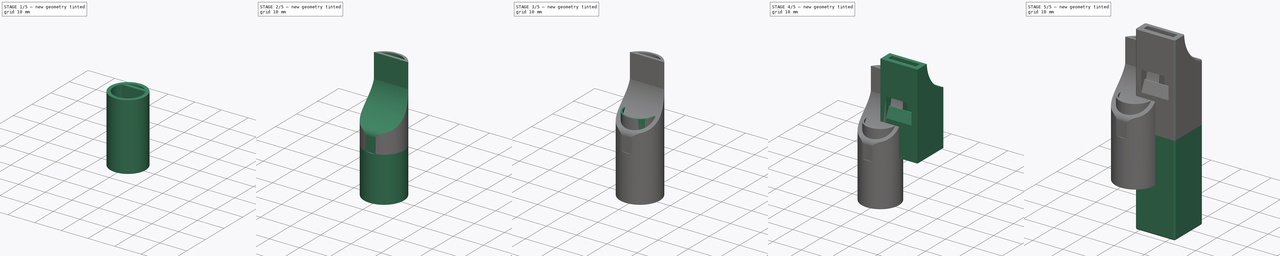
[diagram: build sequence overview — one tinted view per stage of 5, left to right]
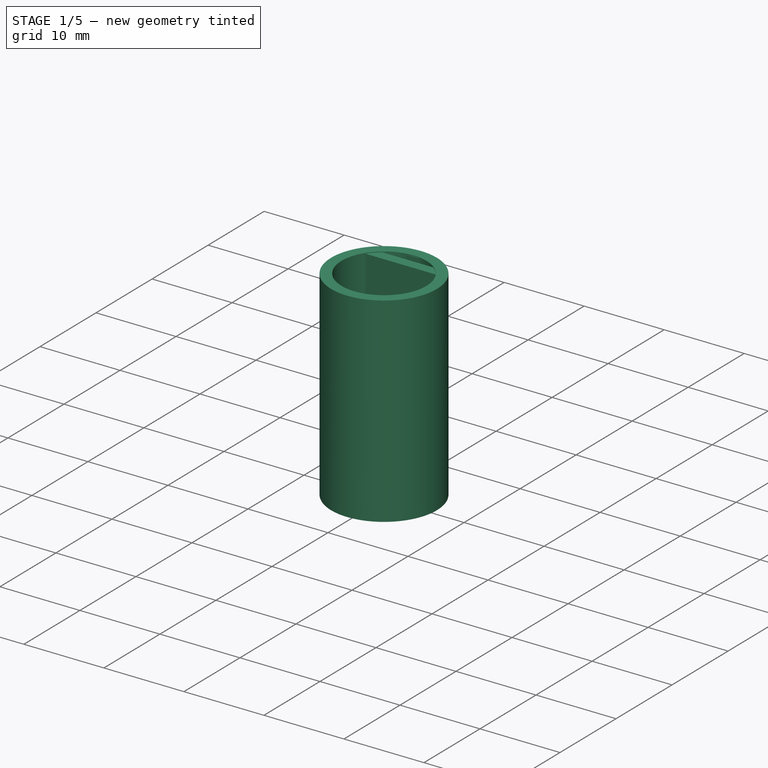
[diagram: stage 1 of 5 — iso view after this stage's code; geometry added in this stage tinted green]
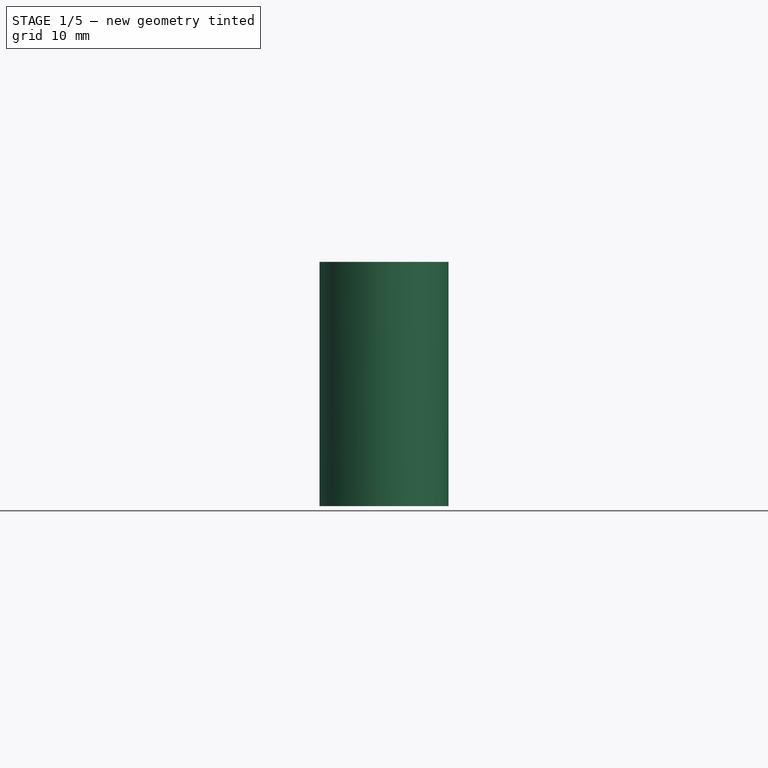
[diagram: stage 1 of 5 — front view after this stage's code; geometry added in this stage tinted green]
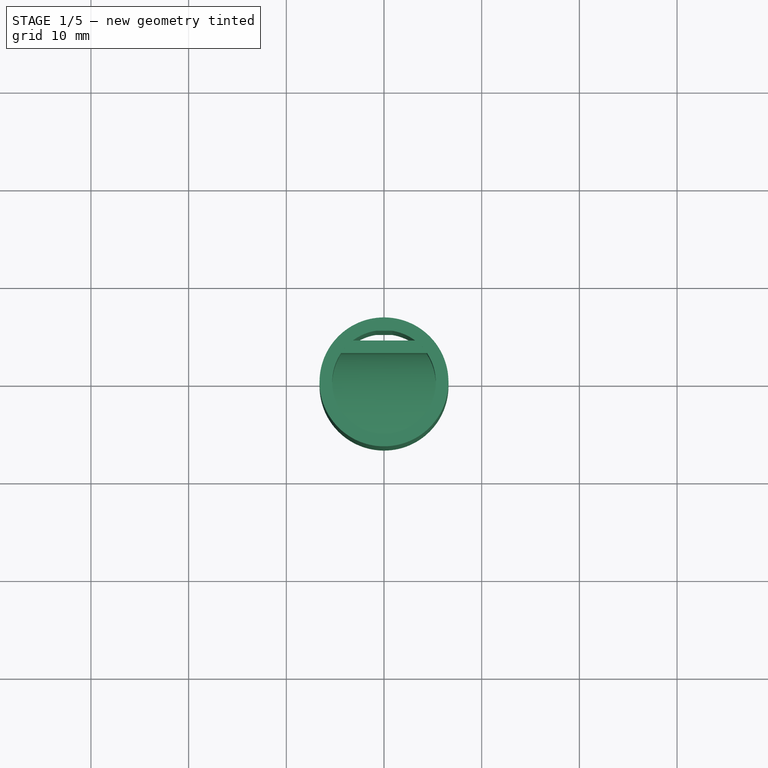
[diagram: stage 1 of 5 — top view after this stage's code; geometry added in this stage tinted green]
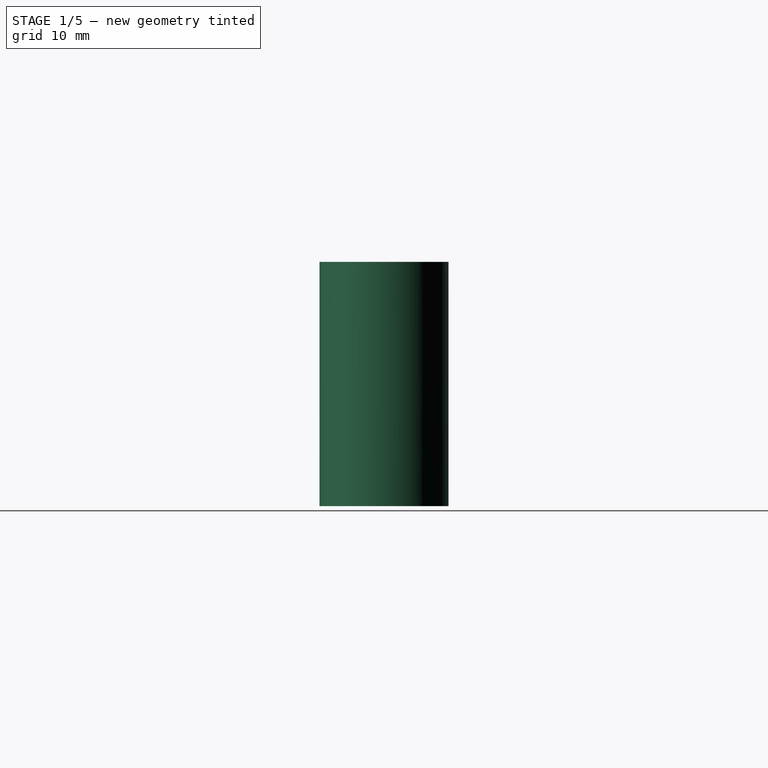
[diagram: stage 1 of 5 — right view after this stage's code; geometry added in this stage tinted green]
FCSTD DOCUMENT  (FreeCAD 1.0R39109 (Git))
Label: Silbato
License: All rights reserved
LicenseURL: http://en.wikipedia.org/wiki/All_rights_reserved
objects: Sketcher::SketchObject×16, PartDesign::Pad×8, PartDesign::Pocket×7, PartDesign::Body×3, PartDesign::Fillet×1, PartDesign::Revolution×1
note: 86 computed .brp shape members not serialized (recipe doc carries the construction recipe); baked Part::Feature solids carry a one-line shape summary decoded from their .brp

FEATURE [PartDesign::Body] Body
  AllowCompound = false
  Group = -> [Sketch,Pad,Sketch001,Sketch002,Pocket,Pad001,Sketch003,Pocket001,Sketch004,Pad002,Sketch005,Pad003,Fillet]
  Origin = -> Origin
  Tip = -> Fillet
FEATURE [Sketcher::SketchObject] Sketch006
  ArcFitTolerance = 1e-06
  AttachmentSupport = -> [XY_Plane001]
  FullyConstrained = true
  MakeInternals = false
  MapMode = 5
  sketch-geometry (2):
    g0: Circle CenterX=0 CenterY=0 CenterZ=0 NormalX=0 NormalY=0 NormalZ=1 AngleXU=0 Radius=6.6
    g1: Circle CenterX=0 CenterY=0 CenterZ=0 NormalX=0 NormalY=0 NormalZ=1 AngleXU=0 Radius=5.3
  constraints (4):
    c: Diameter(g0) = 13.2
    c: Coincident(g0,g-1)
    c: Diameter(g1) = 10.6
    c: Coincident(g1,g0)
FEATURE [PartDesign::Pad] Pad004
  Direction = (0,0,1)
  Length = 25
  Length2 = 10
  Profile = -> Sketch006
  ReferenceAxis = -> Sketch006 [N_Axis]
  Suppressed = false
  Type = 0
FEATURE [Sketcher::SketchObject] Sketch007
  ArcFitTolerance = 1e-06
  AttachmentOffset = pos=(0,0,-5.5) rot=(0,0,1;0rad)
  AttachmentSupport = -> [YZ_Plane001]
  FullyConstrained = false
  MakeInternals = false
  MapMode = 5
  Placement = pos=(-5.5,0,0) rot=(0.57735,0.57735,0.57735;2.0944rad)
  sketch-geometry (14):
    g0: LineSegment StartX=-6.58449 StartY=4.98626 StartZ=0 EndX=-6.58449 EndY=-0.000363 EndZ=0
    g1: LineSegment StartX=6.50077 StartY=0 StartZ=0 EndX=6.50077 EndY=24.9101 EndZ=0
    g2: LineSegment StartX=6.50077 StartY=24.9101 StartZ=0 EndX=5.2313 EndY=24.9101 EndZ=0
    g3: LineSegment StartX=5.2313 StartY=24.9101 StartZ=0 EndX=5.2313 EndY=0 EndZ=0
    g4: LineSegment StartX=-5.31449 StartY=4.63908 StartZ=0 EndX=-5.31449 EndY=-0.000363 EndZ=0
    g5: ArcOfCircle CenterX=-9.83153 CenterY=19.0905 CenterZ=0 NormalX=0 NormalY=0 NormalZ=1 AngleXU=0 Radius=12.9751 StartAngle=5.07558 EndAngle=6.11535
    g6: LineSegment StartX=4.23129 StartY=24.9101 StartZ=0 EndX=4.23129 EndY=16.923 EndZ=0
    g7: ArcOfCircle CenterX=-9.7085 CenterY=19.0572 CenterZ=0 NormalX=0 NormalY=0 NormalZ=1 AngleXU=0 Radius=14.1022 StartAngle=5.09797 EndAngle=6.13126
    g8: ArcOfCircle CenterX=-4.47116 CenterY=4.98626 CenterZ=0 NormalX=0 NormalY=0 NormalZ=1 AngleXU=0 Radius=2.11333 StartAngle=1.93399 EndAngle=3.14159
    g9: ArcOfCircle CenterX=-3.85615 CenterY=4.63908 CenterZ=0 NormalX=0 NormalY=0 NormalZ=1 AngleXU=0 Radius=1.45834 StartAngle=1.95638 EndAngle=3.14159
    g10: LineSegment StartX=-5.31449 StartY=-0.000363 StartZ=0 EndX=-6.58449 EndY=-0.000363 EndZ=0
    g11: LineSegment StartX=6.50077 StartY=0 StartZ=0 EndX=5.2313 EndY=0 EndZ=0
    g12: LineSegment StartX=4.23129 StartY=24.9101 StartZ=0 EndX=2.96129 EndY=24.9101 EndZ=0
    g13: LineSegment StartX=2.96129 StartY=16.923 StartZ=0 EndX=2.96129 EndY=24.9101 EndZ=0
  constraints (23):
    c: Coincident(g1,g2)
    c: Vertical(g0)
    c: Vertical(g1)
    c: Horizontal(g2)
    c: PointOnObject(g1,g-1)
    c: Vertical(g3)
    c: Coincident(g7,g6)
    c: Tangent(g5,g8) = 1.5708
    c: Tangent(g0,g8) = -1.5708
    c: Tangent(g7,g9) = 1.5708
    c: Tangent(g4,g9) = -1.5708
    c: Coincident(g2,g3)
    c: Coincident(g10,g4)
    c: Coincident(g10,g0)
    c: Horizontal(g10)
    c: Coincident(g11,g1)
    c: Coincident(g11,g3)
    c: Horizontal(g11)
    c: Coincident(g12,g6)
    c: Horizontal(g12)
    c: Coincident(g13,g5)
    c: Coincident(g13,g12)
    c: Vertical(g13)
FEATURE [PartDesign::Pad] Pad005
  BaseFeature = -> Pad004
  Direction = (1,0,0)
  Length = 11
  Length2 = 10
  Profile = -> Sketch007
  ReferenceAxis = -> Sketch007 [N_Axis]
  Suppressed = false
  Type = 0
FEATURE [Sketcher::SketchObject] Sketch008
  ArcFitTolerance = 1e-06
  AttachmentOffset = pos=(0,0,-1) rot=(0,0,1;0rad)
  AttachmentSupport = -> [XY_Plane001]
  FullyConstrained = false
  MakeInternals = false
  MapMode = 5
  Placement = pos=(0,0,-1) rot=(0,0,1;0rad)
  sketch-geometry (5):
    g0: Circle CenterX=0 CenterY=0 CenterZ=0 NormalX=0 NormalY=0 NormalZ=1 AngleXU=0 Radius=6.6
    g1: LineSegment StartX=-19.5629 StartY=17.5739 StartZ=0 EndX=-19.5629 EndY=-19.9078 EndZ=0
    g2: LineSegment StartX=-19.5629 StartY=-19.9078 StartZ=0 EndX=22.5857 EndY=-19.9078 EndZ=0
    g3: LineSegment StartX=22.5857 StartY=-19.9078 StartZ=0 EndX=22.5857 EndY=17.5739 EndZ=0
    g4: LineSegment StartX=22.5857 StartY=17.5739 StartZ=0 EndX=-19.5629 EndY=17.5739 EndZ=0
  constraints (10):
    c: Diameter(g0) = 13.2
    c: Coincident(g0,g-1)
    c: Coincident(g1,g2)
    c: Coincident(g2,g3)
    c: Coincident(g3,g4)
    c: Coincident(g4,g1)
    c: Vertical(g1)
    c: Vertical(g3)
    c: Horizontal(g2)
    c: Horizontal(g4)
FEATURE [PartDesign::Pocket] Pocket002
  BaseFeature = -> Pad005
  Direction = (0,0,-1)
  Length = 26
  Length2 = 5
  Profile = -> Sketch008
  ReferenceAxis = -> Sketch008 [N_Axis]
  Reversed = true
  Suppressed = false
  Type = 0
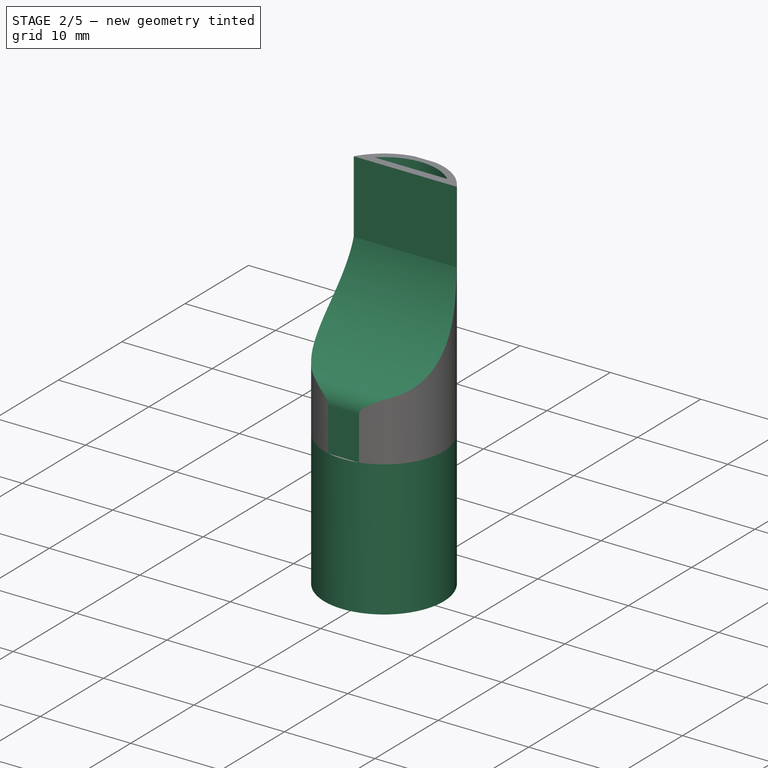
[diagram: stage 2 of 5 — iso view after this stage's code; geometry added in this stage tinted green]
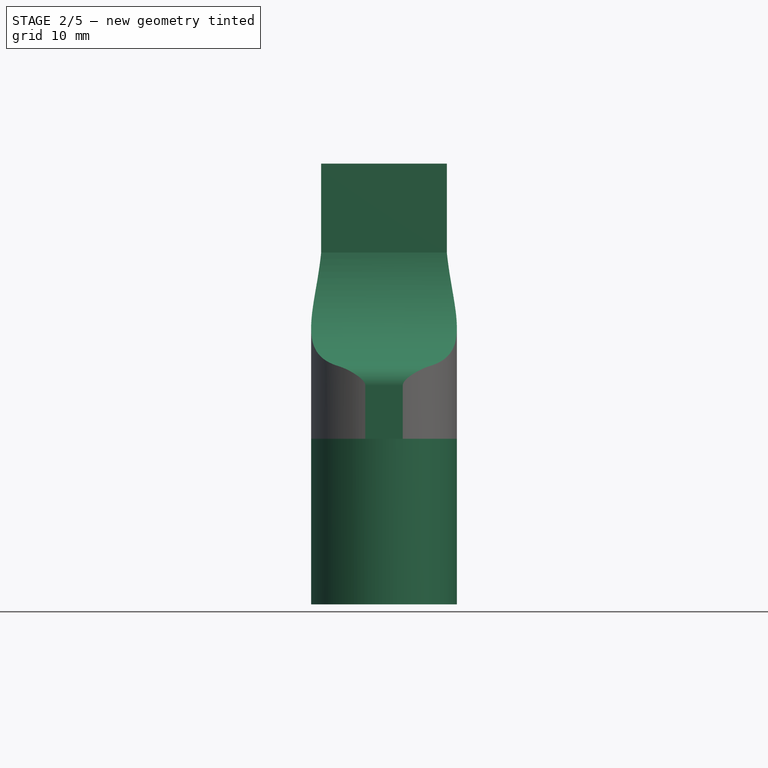
[diagram: stage 2 of 5 — front view after this stage's code; geometry added in this stage tinted green]
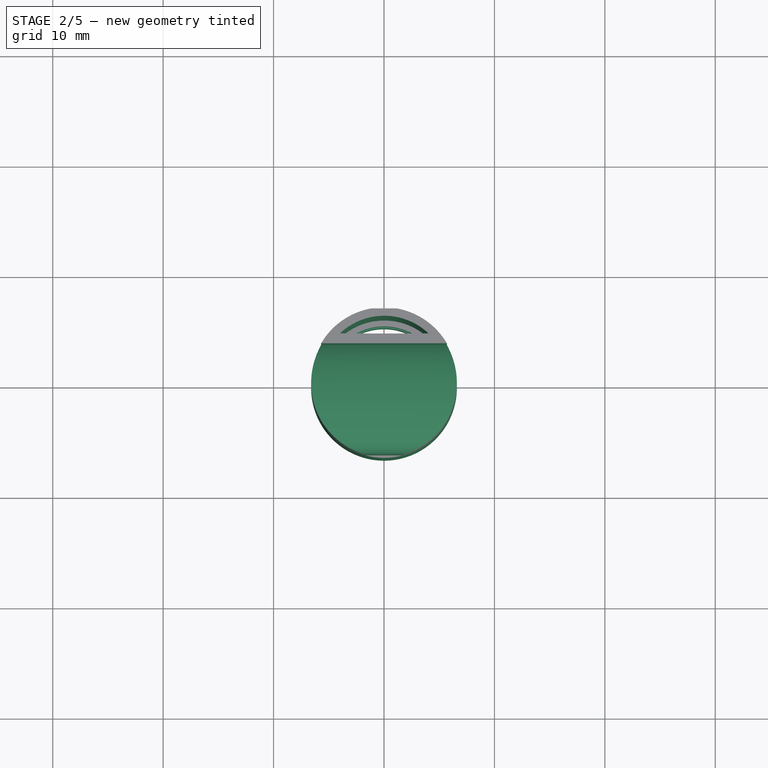
[diagram: stage 2 of 5 — top view after this stage's code; geometry added in this stage tinted green]
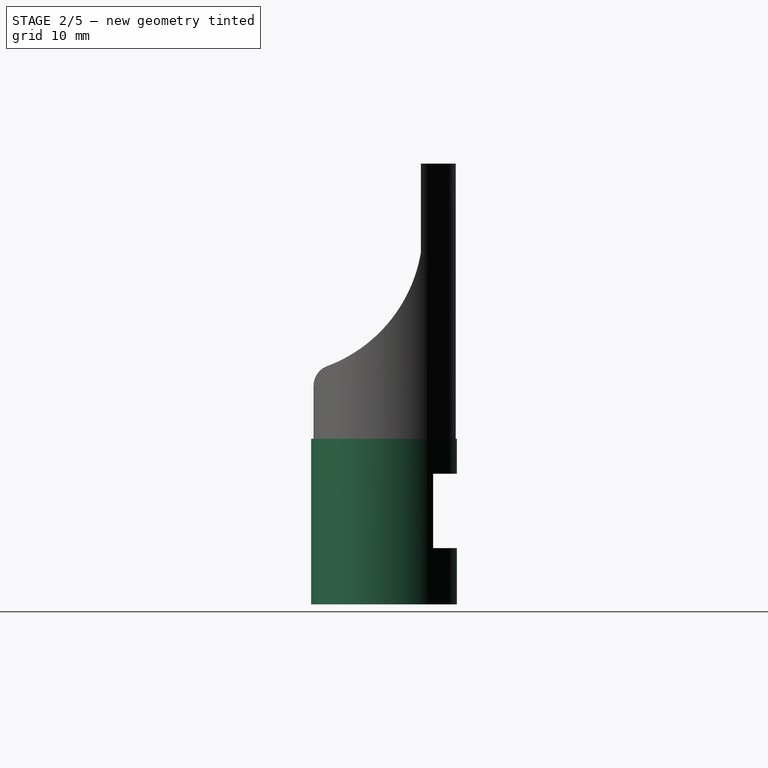
[diagram: stage 2 of 5 — right view after this stage's code; geometry added in this stage tinted green]
FEATURE [Sketcher::SketchObject] Sketch009
  ArcFitTolerance = 1e-06
  AttachmentOffset = pos=(0,0,-8) rot=(0,0,1;0rad)
  AttachmentSupport = -> [YZ_Plane001]
  FullyConstrained = false
  MakeInternals = false
  MapMode = 5
  Placement = pos=(-8,0,0) rot=(0.57735,0.57735,0.57735;2.0944rad)
  sketch-geometry (11):
    g0: LineSegment StartX=-6.3783 StartY=4.79849 StartZ=0 EndX=-6.3783 EndY=0 EndZ=0
    g1: LineSegment StartX=6.50077 StartY=0 StartZ=0 EndX=6.50077 EndY=24.9101 EndZ=0
    g2: ArcOfCircle CenterX=-9.83153 CenterY=19.0905 CenterZ=0 NormalX=0 NormalY=0 NormalZ=1 AngleXU=0 Radius=13.3624 StartAngle=5.0707 EndAngle=6.1154
    g3: ArcOfCircle CenterX=-4.47952 CenterY=4.79849 CenterZ=0 NormalX=0 NormalY=0 NormalZ=1 AngleXU=0 Radius=1.89877 StartAngle=1.92911 EndAngle=3.14159
    g4: LineSegment StartX=3.34325 StartY=16.8589 StartZ=0 EndX=3.34325 EndY=24.9101 EndZ=0
    g5: LineSegment StartX=11.756 StartY=0 StartZ=0 EndX=11.756 EndY=26.7207 EndZ=0
    g6: LineSegment StartX=11.756 StartY=26.7207 StartZ=0 EndX=-13.8336 EndY=26.7207 EndZ=0
    g7: LineSegment StartX=-13.8336 StartY=26.7207 StartZ=0 EndX=-13.8336 EndY=0 EndZ=0
    g8: LineSegment StartX=-6.3783 StartY=0 StartZ=0 EndX=-13.8336 EndY=0 EndZ=0
    g9: LineSegment StartX=6.50077 StartY=24.9101 StartZ=0 EndX=3.34325 EndY=24.9101 EndZ=0
    g10: LineSegment StartX=11.756 StartY=0 StartZ=0 EndX=6.50077 EndY=0 EndZ=0
  constraints (22):
    c: Vertical(g0)
    c: Vertical(g1)
    c: PointOnObject(g1,g-1)
    c: Tangent(g2,g3) = 1.5708
    c: Tangent(g0,g3) = -1.5708
    c: Coincident(g4,g2)
    c: Vertical(g4)
    c: Coincident(g5,g6)
    c: Coincident(g6,g7)
    c: Horizontal(g6)
    c: Vertical(g5)
    c: Vertical(g7)
    c: PointOnObject(g7,g-1)
    c: Coincident(g8,g0)
    c: Coincident(g8,g7)
    c: Horizontal(g8)
    c: Coincident(g9,g1)
    c: Coincident(g9,g4)
    c: Horizontal(g9)
    c: Coincident(g10,g5)
    c: Coincident(g10,g1)
    c: Horizontal(g10)
FEATURE [PartDesign::Pocket] Pocket003
  BaseFeature = -> Pocket002
  Direction = (-1,0,0)
  Length = 9
  Length2 = 5
  Profile = -> Sketch009
  ReferenceAxis = -> Sketch009 [N_Axis]
  Reversed = true
  Suppressed = false
  Type = 1
FEATURE [PartDesign::Body] Body002
  AllowCompound = false
  Group = -> [Sketch010,Pad006]
  Origin = -> Origin002
  Tip = -> Pad006
FEATURE [Sketcher::SketchObject] Sketch011
  ArcFitTolerance = 1e-06
  AttachmentSupport = -> [Pocket003]
  ExternalGeometry = -> [Pocket003]
  FullyConstrained = false
  MakeInternals = false
  MapMode = 5
  Placement = pos=(0,0,24.9101) rot=(0,0,1;0rad)
  sketch-geometry (2):
    g0: ArcOfCircle CenterX=0.0185375 CenterY=-0.002136 CenterZ=0 NormalX=0 NormalY=0 NormalZ=1 AngleXU=0 Radius=5.83666 StartAngle=0.812321 EndAngle=2.32927
    g1: LineSegment StartX=-3.99601 StartY=4.23461 StartZ=0 EndX=4.03308 EndY=4.23461 EndZ=0
  constraints (3):
    c: Coincident(g1,g0)
    c: Coincident(g1,g0)
    c: Horizontal(g1)
FEATURE [PartDesign::Pocket] Pocket004
  BaseFeature = -> Pocket003
  Direction = (0,0,-1)
  Length = 5
  Length2 = 5
  Profile = -> Sketch011
  ReferenceAxis = -> Sketch011 [N_Axis]
  Suppressed = false
  Type = 1
FEATURE [Sketcher::SketchObject] Sketch012
  ArcFitTolerance = 1e-06
  AttachmentSupport = -> [XY_Plane001]
  FullyConstrained = true
  MakeInternals = false
  MapMode = 5
  sketch-geometry (2):
    g0: Circle CenterX=0 CenterY=0 CenterZ=0 NormalX=0 NormalY=0 NormalZ=1 AngleXU=0 Radius=6.6
    g1: Circle CenterX=0 CenterY=0 CenterZ=0 NormalX=0 NormalY=0 NormalZ=1 AngleXU=0 Radius=5.3
  constraints (4):
    c: Diameter(g0) = 13.2
    c: Coincident(g0,g-1)
    c: Diameter(g1) = 10.6
    c: Coincident(g1,g0)
FEATURE [PartDesign::Pad] Pad007
  BaseFeature = -> Pocket004
  Direction = (0,0,1)
  Length = 15
  Length2 = 10
  Profile = -> Sketch012
  ReferenceAxis = -> Sketch012 [N_Axis]
  Reversed = true
  Suppressed = false
  Type = 0
FEATURE [Sketcher::SketchObject] Sketch013
  ArcFitTolerance = 1e-06
  AttachmentOffset = pos=(0,0,-7) rot=(0,0,1;0rad)
  AttachmentSupport = -> [YZ_Plane001]
  FullyConstrained = false
  MakeInternals = false
  MapMode = 5
  Placement = pos=(-7,0,0) rot=(0.57735,0.57735,0.57735;2.0944rad)
  sketch-geometry (4):
    g0: LineSegment StartX=7.72749 StartY=-3.17644 StartZ=0 EndX=4.45519 EndY=-3.17644 EndZ=0
    g1: LineSegment StartX=4.45519 StartY=-3.17644 StartZ=0 EndX=4.45519 EndY=-9.90637 EndZ=0
    g2: LineSegment StartX=4.45519 StartY=-9.90637 StartZ=0 EndX=7.72749 EndY=-9.90637 EndZ=0
    g3: LineSegment StartX=7.72749 StartY=-9.90637 StartZ=0 EndX=7.72749 EndY=-3.17644 EndZ=0
  constraints (8):
    c: Coincident(g0,g1)
    c: Coincident(g1,g2)
    c: Coincident(g2,g3)
    c: Coincident(g3,g0)
    c: Horizontal(g0)
    c: Horizontal(g2)
    c: Vertical(g1)
    c: Vertical(g3)
FEATURE [PartDesign::Pocket] Pocket005
  BaseFeature = -> Pad007
  Direction = (-1,0,0)
  Length = 5
  Length2 = 5
  Profile = -> Sketch013
  ReferenceAxis = -> Sketch013 [N_Axis]
  Reversed = true
  Suppressed = false
  Type = 1
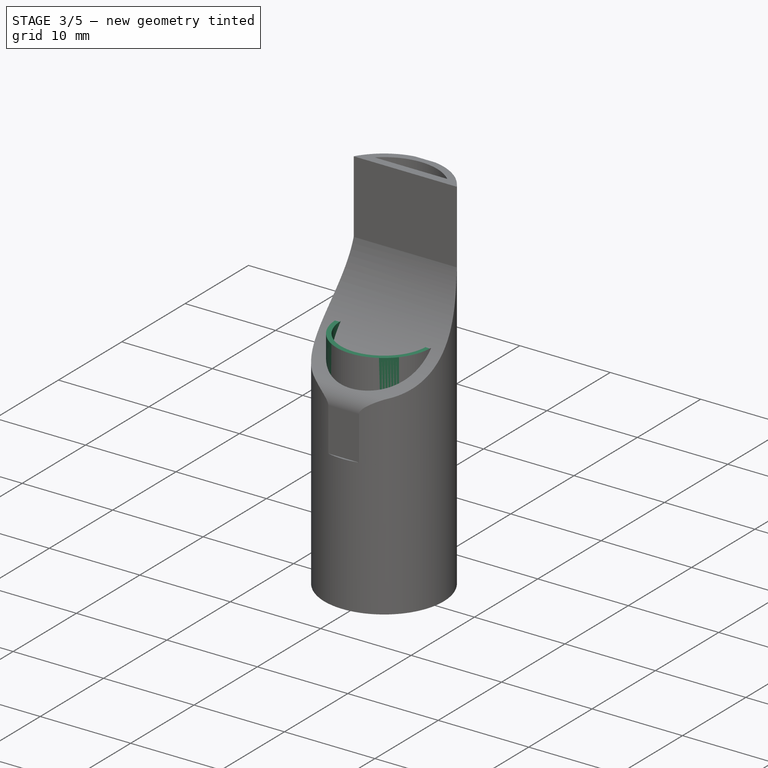
[diagram: stage 3 of 5 — iso view after this stage's code; geometry added in this stage tinted green]
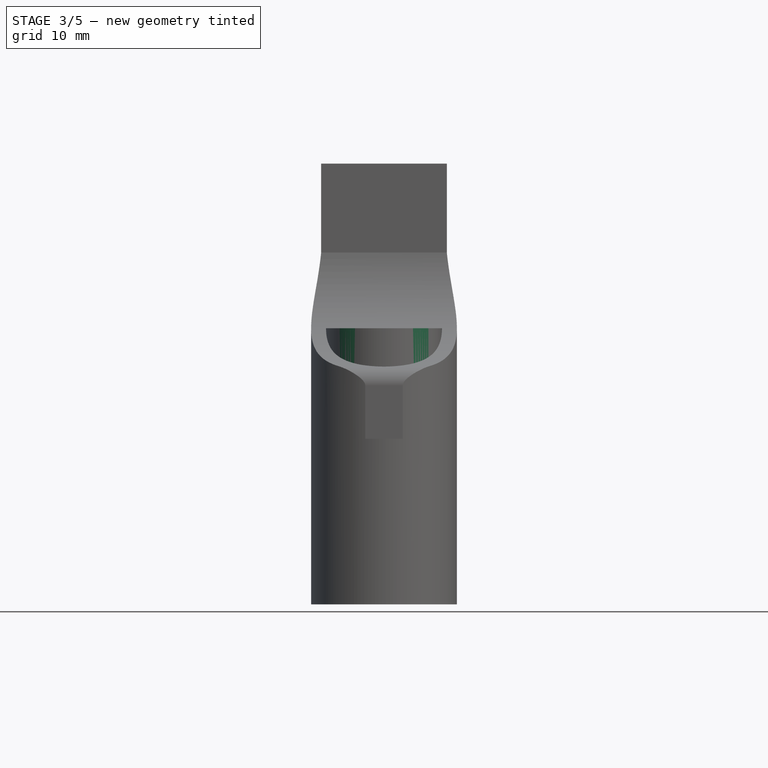
[diagram: stage 3 of 5 — front view after this stage's code; geometry added in this stage tinted green]
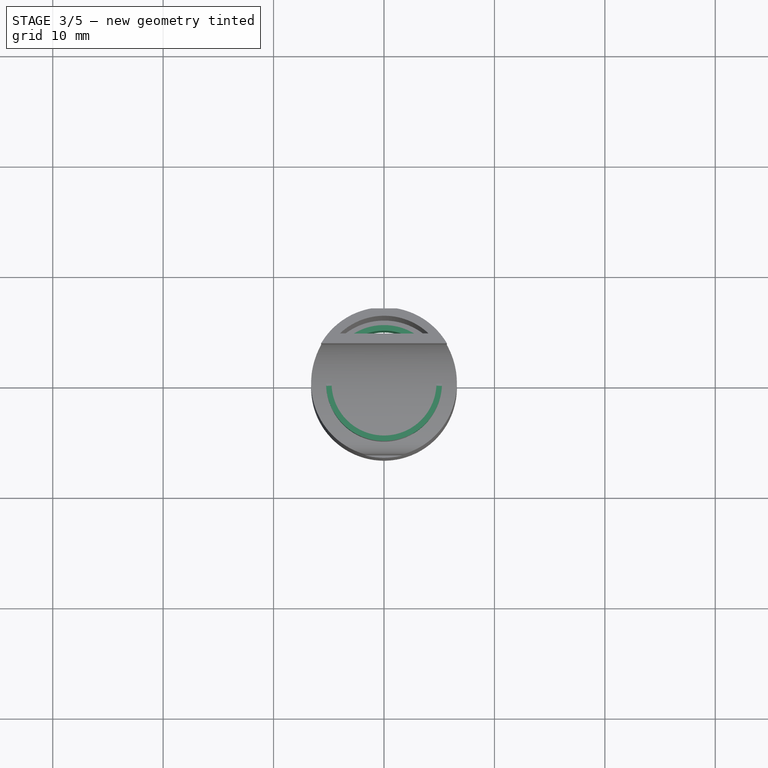
[diagram: stage 3 of 5 — top view after this stage's code; geometry added in this stage tinted green]
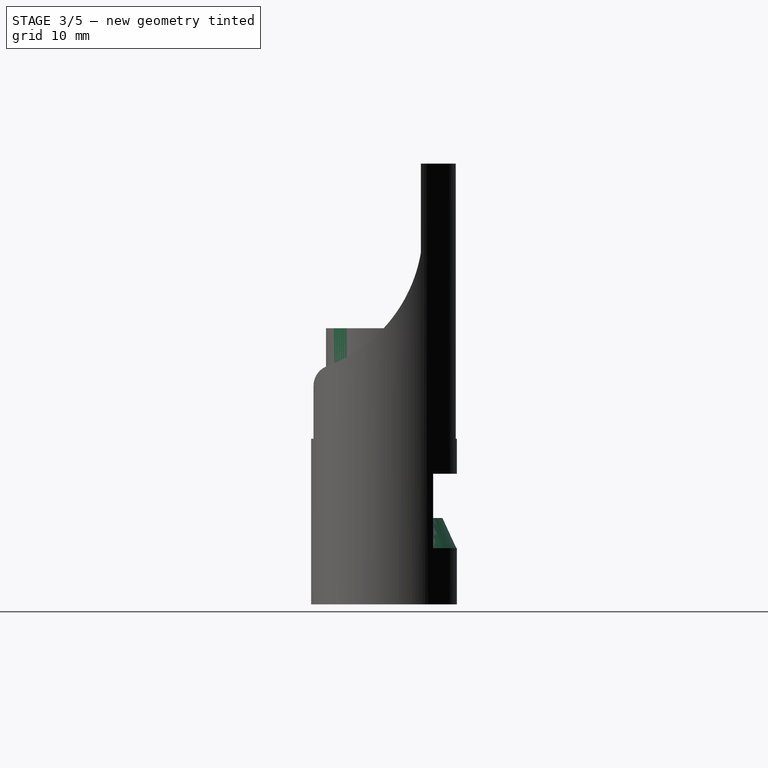
[diagram: stage 3 of 5 — right view after this stage's code; geometry added in this stage tinted green]
FEATURE [Sketcher::SketchObject] Sketch010
  ArcFitTolerance = 1e-06
  AttachmentSupport = -> [XY_Plane002]
  FullyConstrained = false
  MakeInternals = false
  MapMode = 5
  sketch-geometry (2):
    g0: Circle CenterX=0 CenterY=0 CenterZ=0 NormalX=0 NormalY=0 NormalZ=1 AngleXU=0 Radius=5.25162
    g1: Circle CenterX=0 CenterY=0 CenterZ=0 NormalX=0 NormalY=0 NormalZ=1 AngleXU=0 Radius=4.75
  constraints (3):
    c: Coincident(g0,g-1)
    c: Diameter(g1) = 9.5
    c: Coincident(g1,g0)
FEATURE [PartDesign::Pad] Pad006
  Direction = (0,0,1)
  Length = 10
  Length2 = 10
  Profile = -> Sketch010
  ReferenceAxis = -> Sketch010 [N_Axis]
  Suppressed = false
  Type = 0
FEATURE [Sketcher::SketchObject] Sketch014
  ArcFitTolerance = 1e-06
  AttachmentSupport = -> [YZ_Plane001]
  ExternalGeometry = -> [Pocket005]
  FullyConstrained = false
  MakeInternals = false
  MapMode = 5
  Placement = pos=(0,0,0) rot=(0.57735,0.57735,0.57735;2.0944rad)
  sketch-geometry (3):
    g0: LineSegment StartX=5.25972 StartY=-9.90637 StartZ=0 EndX=6.55426 EndY=-9.90637 EndZ=0
    g1: LineSegment StartX=6.55426 StartY=-9.90637 StartZ=0 EndX=4.86409 EndY=-6.23806 EndZ=0
    g2: LineSegment StartX=4.86409 StartY=-6.23806 StartZ=0 EndX=5.25972 EndY=-9.90637 EndZ=0
  constraints (4):
    c: Horizontal(g0)
    c: Coincident(g0,g1)
    c: Coincident(g2,g1)
    c: Coincident(g2,g0)
FEATURE [PartDesign::Revolution] Revolution
  Angle = 100
  Angle2 = 60
  Axis = (0,0,1)
  Base = (0,0,0)
  BaseFeature = -> Pocket005
  Midplane = true
  Profile = -> Sketch014
  ReferenceAxis = -> Sketch014 [V_Axis]
  Reversed = true
  Suppressed = false
  Type = 0
FEATURE [Sketcher::SketchObject] Sketch015
  ArcFitTolerance = 1e-06
  AttachmentOffset = pos=(0,0,-10) rot=(0,0,1;0rad)
  AttachmentSupport = -> [XY_Plane001]
  FullyConstrained = false
  MakeInternals = false
  MapMode = 5
  Placement = pos=(0,0,-10) rot=(0,0,1;0rad)
  sketch-geometry (1):
    g0: Circle CenterX=0 CenterY=0 CenterZ=0 NormalX=0 NormalY=0 NormalZ=1 AngleXU=0 Radius=5.3
  constraints (1):
    c: Diameter(g0) = 10.6
FEATURE [PartDesign::Pocket] Pocket006
  BaseFeature = -> Revolution
  Direction = (0,0,-1)
  Length = 5
  Length2 = 5
  Profile = -> Sketch015
  ReferenceAxis = -> Sketch015 [N_Axis]
  Reversed = true
  Suppressed = false
  Type = 0
FEATURE [PartDesign::Body] Body001
  AllowCompound = false
  Group = -> [Sketch006,Pad004,Sketch007,Pad005,Sketch008,Pocket002,Sketch009,Pocket003,Sketch011,Pocket004,Sketch012,Pad007,Sketch013,Pocket005,Sketch014,Revolution,Sketch015,Pocket006]
  Origin = -> Origin001
  Tip = -> Pocket006
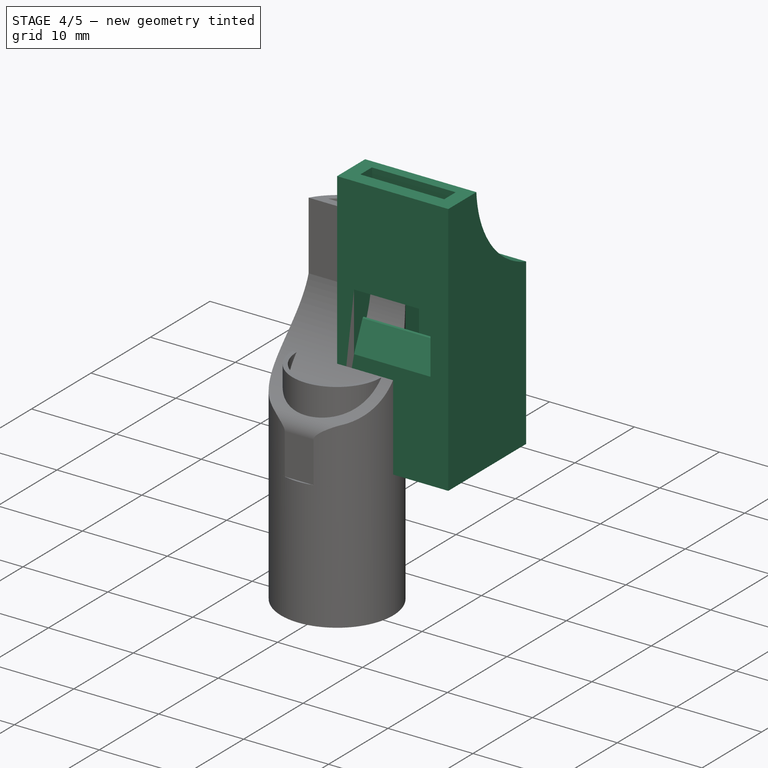
[diagram: stage 4 of 5 — iso view after this stage's code; geometry added in this stage tinted green]
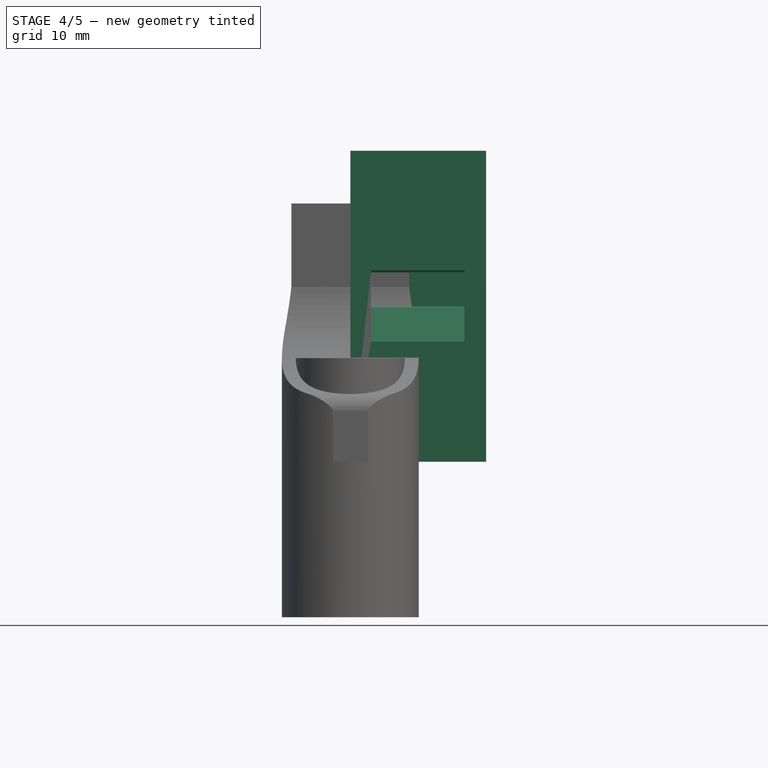
[diagram: stage 4 of 5 — front view after this stage's code; geometry added in this stage tinted green]
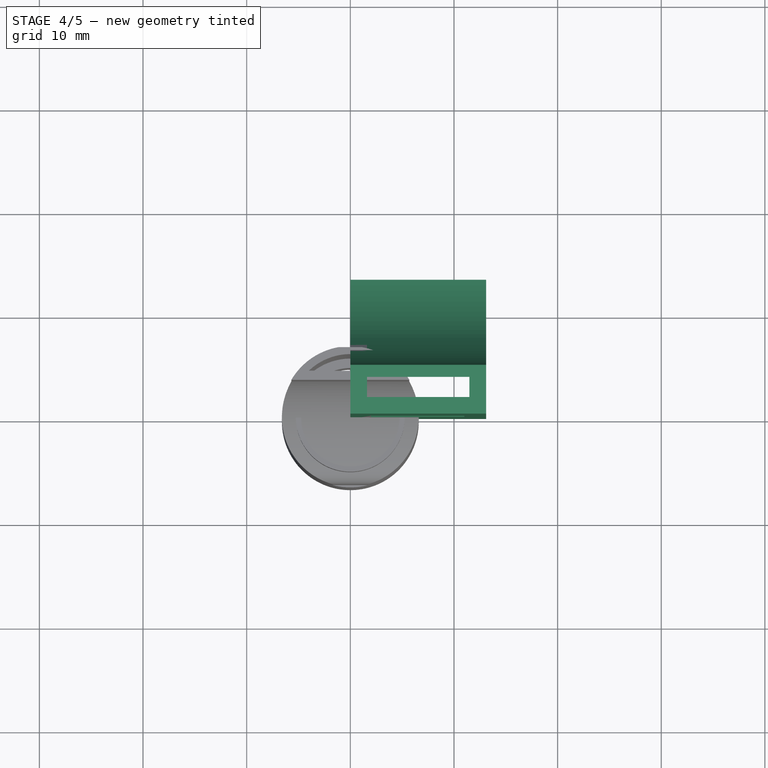
[diagram: stage 4 of 5 — top view after this stage's code; geometry added in this stage tinted green]
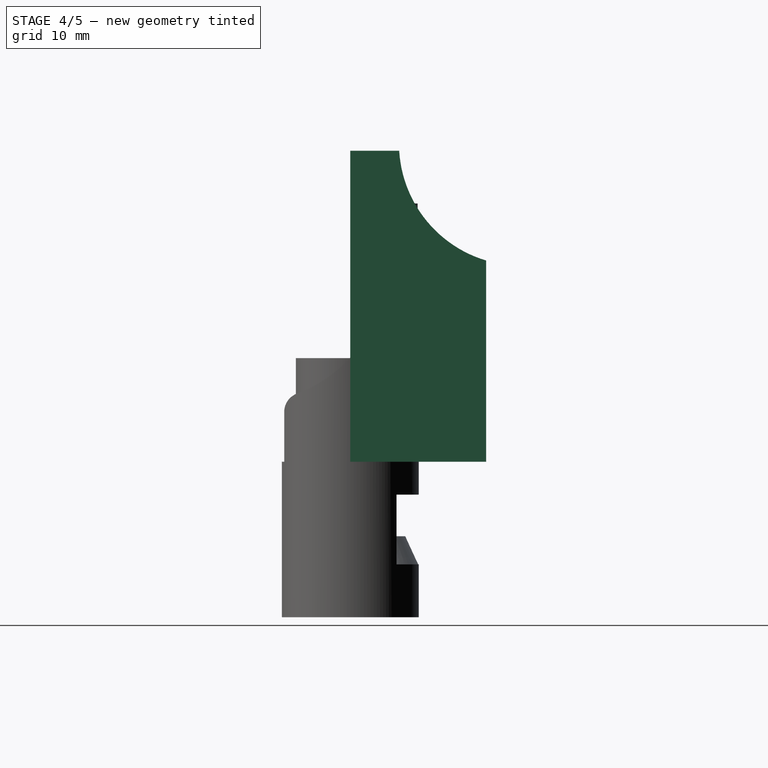
[diagram: stage 4 of 5 — right view after this stage's code; geometry added in this stage tinted green]
FEATURE [Sketcher::SketchObject] Sketch
  ArcFitTolerance = 1e-06
  AttachmentSupport = -> [XY_Plane]
  FullyConstrained = false
  MakeInternals = false
  MapMode = 5
  sketch-geometry (12):
    g0: LineSegment StartX=0 StartY=0 StartZ=0 EndX=13.1 EndY=0 EndZ=0
    g1: LineSegment StartX=13.1 StartY=0 StartZ=0 EndX=13.1 EndY=13.1 EndZ=0
    g2: LineSegment StartX=13.1 StartY=13.1 StartZ=0 EndX=0 EndY=13.1 EndZ=0
    g3: LineSegment StartX=0 StartY=13.1 StartZ=0 EndX=0 EndY=0 EndZ=0
    g4: LineSegment StartX=1.60951 StartY=1.60951 StartZ=0 EndX=11.4905 EndY=1.60951 EndZ=0
    g5: LineSegment StartX=11.4905 StartY=1.60951 StartZ=0 EndX=11.4905 EndY=11.4905 EndZ=0
    g6: LineSegment StartX=11.4905 StartY=11.4905 StartZ=0 EndX=1.60951 EndY=11.4905 EndZ=0
    g7: LineSegment StartX=1.60951 StartY=11.4905 StartZ=0 EndX=1.60951 EndY=1.60951 EndZ=0
    g8: LineSegment [constr] StartX=0 StartY=0 StartZ=0 EndX=1.60951 EndY=1.60951 EndZ=0
    g9: LineSegment [constr] StartX=13.1 StartY=0 StartZ=0 EndX=11.4905 EndY=1.60951 EndZ=0
    g10: LineSegment [constr] StartX=13.1 StartY=13.1 StartZ=0 EndX=11.4905 EndY=11.4905 EndZ=0
    g11: LineSegment [constr] StartX=0 StartY=13.1 StartZ=0 EndX=1.60951 EndY=11.4905 EndZ=0
  constraints (30):
    c: Coincident(g0,g1)
    c: Coincident(g1,g2)
    c: Coincident(g2,g3)
    c: Coincident(g3,g0)
    c: Horizontal(g0)
    c: Horizontal(g2)
    c: Vertical(g1)
    c: Vertical(g3)
    c: Coincident(g4,g5)
    c: Coincident(g5,g6)
    c: Coincident(g6,g7)
    c: Coincident(g7,g4)
    c: Horizontal(g4)
    c: Horizontal(g6)
    c: Vertical(g5)
    c: Vertical(g7)
    c: Coincident(g8,g0)
    c: Coincident(g8,g4)
    c: Coincident(g9,g1)
    c: Coincident(g9,g5)
    c: Coincident(g10,g2)
    c: Coincident(g10,g6)
    c: Coincident(g11,g3)
    c: Coincident(g11,g7)
    c: Perpendicular(g8,g9)
    c: Perpendicular(g9,g10)
    c: Perpendicular(g10,g11)
    c: Distance(g1,g3) = 13.1
    c: Distance(g0,g2) = 13.1
    c: Coincident(g0,g-1)
FEATURE [PartDesign::Pad] Pad
  Direction = (0,0,1)
  Length = 30
  Length2 = 10
  Profile = -> Sketch
  ReferenceAxis = -> Sketch [N_Axis]
  Suppressed = false
  Type = 0
FEATURE [Sketcher::SketchObject] Sketch001
  ArcFitTolerance = 1e-06
  AttachmentSupport = -> [Pad]
  ExternalGeometry = -> [Pad]
  FullyConstrained = false
  MakeInternals = false
  MapMode = 5
  Placement = pos=(0,0,0) rot=(0.57735,-0.57735,-0.57735;2.0944rad)
  sketch-geometry (3):
    g0: ArcOfCircle CenterX=-16.4717 CenterY=30.6986 CenterZ=0 NormalX=0 NormalY=0 NormalZ=1 AngleXU=0 Radius=11.7755 StartAngle=5.00278 EndAngle=6.22382
    g1: LineSegment StartX=-4.71691 StartY=30 StartZ=0 EndX=-13.1 EndY=30 EndZ=0
    g2: LineSegment StartX=-13.1 StartY=30 StartZ=0 EndX=-13.1 EndY=19.4161 EndZ=0
  constraints (6):
    c: Coincident(g1,g0)
    c: Coincident(g1,g-4)
    c: Horizontal(g1)
    c: Coincident(g2,g1)
    c: Coincident(g2,g0)
    c: Vertical(g2)
FEATURE [Sketcher::SketchObject] Sketch002
  ArcFitTolerance = 1e-06
  AttachmentSupport = -> [Pad]
  ExternalGeometry = -> [Pad]
  FullyConstrained = false
  MakeInternals = false
  MapMode = 5
  Placement = pos=(0,0,0) rot=(0.57735,-0.57735,-0.57735;2.0944rad)
  sketch-geometry (4):
    g0: LineSegment StartX=-3.54988 StartY=30 StartZ=0 EndX=-4.71691 EndY=30 EndZ=0
    g1: LineSegment StartX=-13.1 StartY=19.4161 StartZ=0 EndX=-13.1 EndY=18.2049 EndZ=0
    g2: ArcOfCircle CenterX=-16.4717 CenterY=30.6986 CenterZ=0 NormalX=0 NormalY=0 NormalZ=1 AngleXU=0 Radius=11.7755 StartAngle=5.00278 EndAngle=6.22382
    g3: ArcOfCircle CenterX=-16.4717 CenterY=30.6986 CenterZ=0 NormalX=0 NormalY=0 NormalZ=1 AngleXU=0 Radius=12.9407 StartAngle=4.97598 EndAngle=6.22917
  constraints (5):
    c: Coincident(g0,g2)
    c: Coincident(g1,g2)
    c: Coincident(g3,g2)
    c: Coincident(g0,g3)
    c: Coincident(g1,g3)
FEATURE [PartDesign::Pocket] Pocket
  BaseFeature = -> Pad
  Direction = (1,0,0)
  Length = 5
  Length2 = 5
  Profile = -> Sketch001
  ReferenceAxis = -> Sketch001 [N_Axis]
  Suppressed = false
  Type = 1
FEATURE [PartDesign::Pad] Pad001
  BaseFeature = -> Pocket
  Direction = (-1,0,0)
  Length = 13.1
  Length2 = 10
  Profile = -> Sketch002
  ReferenceAxis = -> Sketch002 [N_Axis]
  Reversed = true
  Suppressed = false
  Type = 0
FEATURE [Sketcher::SketchObject] Sketch003
  ArcFitTolerance = 1e-06
  AttachmentOffset = pos=(0,0,-2) rot=(0,0,1;0rad)
  AttachmentSupport = -> [Pad001]
  ExternalGeometry = -> [Pad001]
  FullyConstrained = false
  MakeInternals = false
  MapMode = 5
  Placement = pos=(2,0,0) rot=(0.57735,-0.57735,-0.57735;2.0944rad)
  sketch-geometry (8):
    g0: LineSegment StartX=-1.60951 StartY=18.2353 StartZ=0 EndX=-1.60951 EndY=15.9121 EndZ=0
    g1: LineSegment StartX=-1.37959 StartY=18.4652 StartZ=0 EndX=0 EndY=18.4652 EndZ=0
    g2: ArcOfCircle CenterX=-1.37959 CenterY=18.2353 CenterZ=0 NormalX=0 NormalY=0 NormalZ=1 AngleXU=0 Radius=0.229924 StartAngle=1.5708 EndAngle=3.14159
    g3: GeomPoint [constr] X=-1.60951 Y=18.4652 Z=0
    g4: LineSegment StartX=-1.60951 StartY=15.9121 StartZ=0 EndX=-1.60951 EndY=14.9614 EndZ=0
    g5: LineSegment StartX=0 StartY=18.4652 StartZ=0 EndX=0 EndY=11.5841 EndZ=0
    g6: LineSegment StartX=-1.39854 StartY=14.7984 StartZ=0 EndX=1e-16 EndY=11.5841 EndZ=0
    g7: ArcOfCircle CenterX=-1.61086 CenterY=14.7416 CenterZ=0 NormalX=0 NormalY=0 NormalZ=1 AngleXU=0 Radius=0.219776 StartAngle=0.261209 EndAngle=1.56466
  constraints (13):
    c: Vertical(g0)
    c: PointOnObject(g5,g-2)
    c: PointOnObject(g3,g1)
    c: PointOnObject(g3,g0)
    c: Tangent(g1,g2) = 1.5708
    c: Tangent(g0,g2) = -1.5708
    c: Coincident(g4,g0)
    c: Vertical(g4)
    c: Coincident(g5,g1)
    c: Vertical(g5)
    c: Coincident(g6,g5)
    c: Coincident(g7,g4)
    c: Coincident(g6,g7)
FEATURE [PartDesign::Pocket] Pocket001
  BaseFeature = -> Pad001
  Direction = (1,0,0)
  Length = 9
  Length2 = 5
  Profile = -> Sketch003
  ReferenceAxis = -> Sketch003 [N_Axis]
  Suppressed = false
  Type = 0
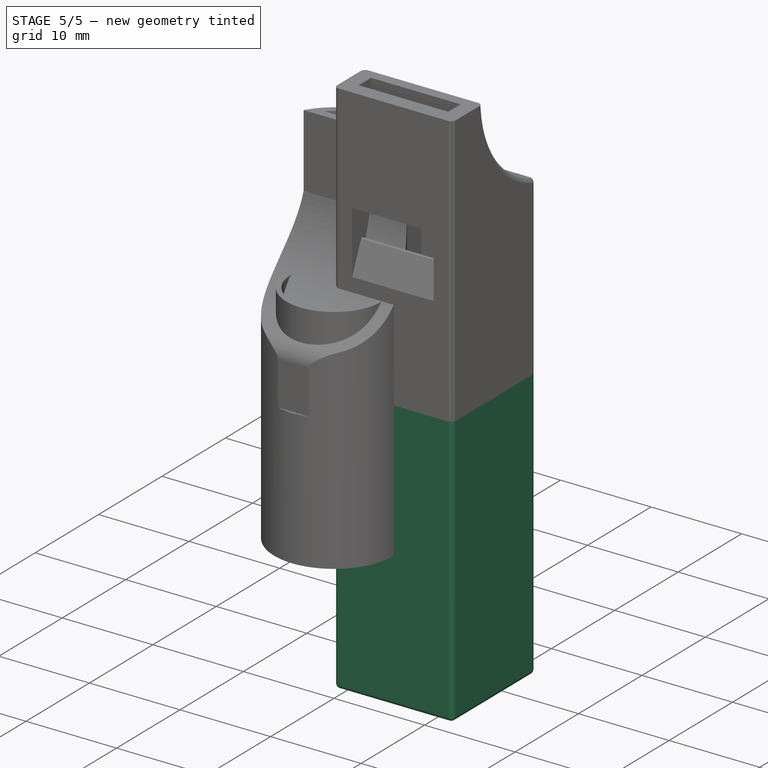
[diagram: stage 5 of 5 — iso view after this stage's code; geometry added in this stage tinted green]
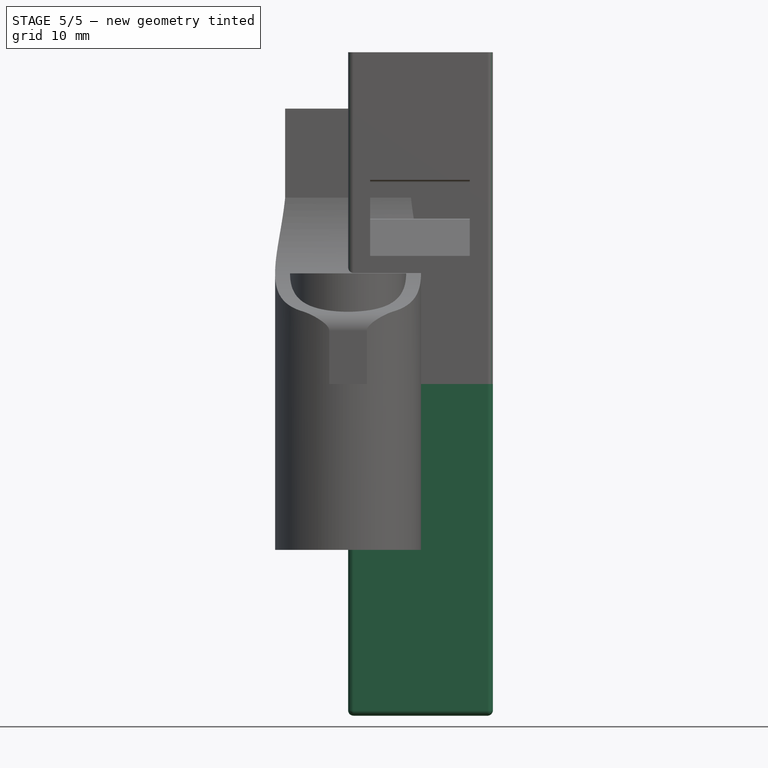
[diagram: stage 5 of 5 — front view after this stage's code; geometry added in this stage tinted green]
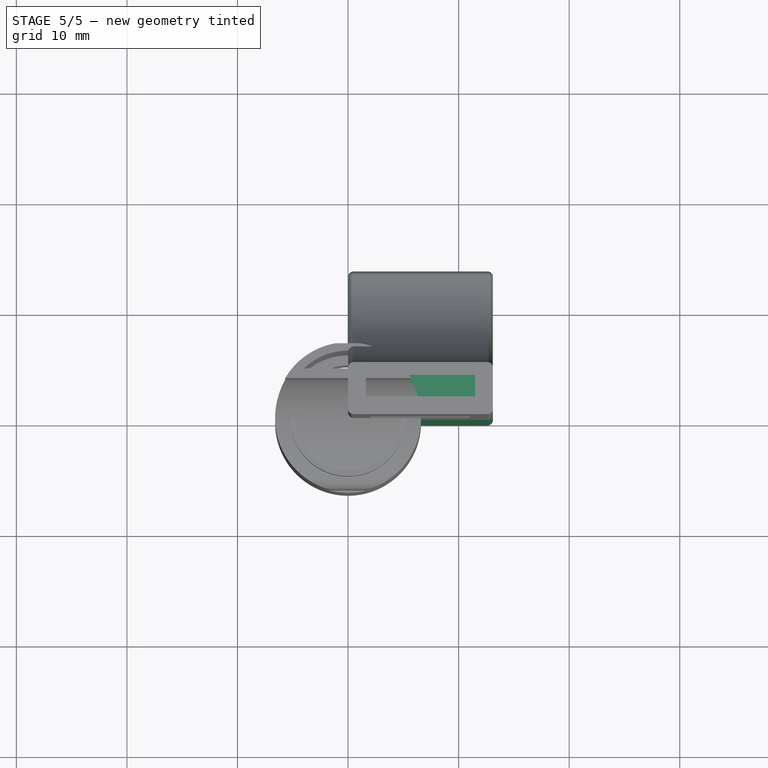
[diagram: stage 5 of 5 — top view after this stage's code; geometry added in this stage tinted green]
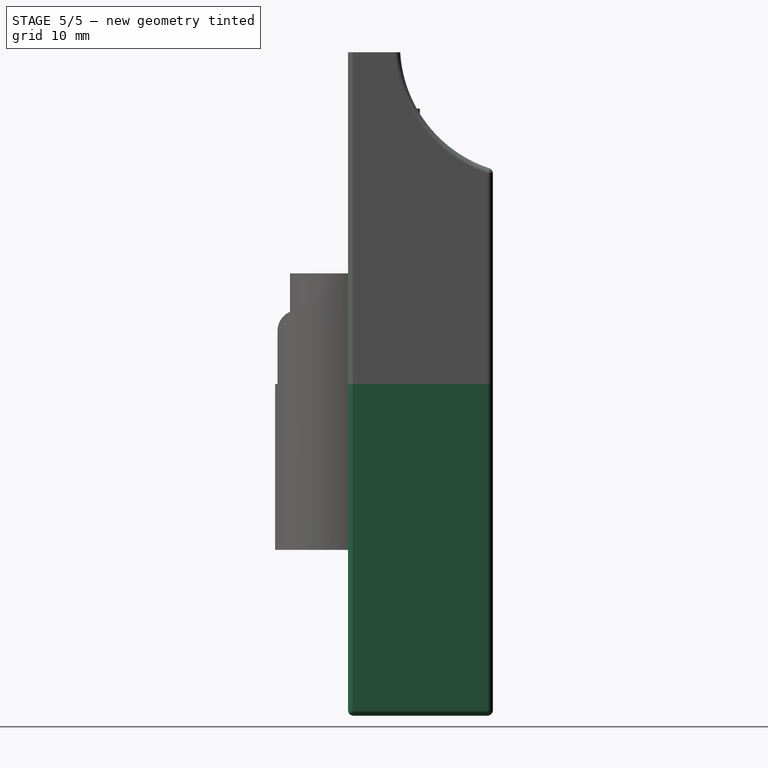
[diagram: stage 5 of 5 — right view after this stage's code; geometry added in this stage tinted green]
FEATURE [Sketcher::SketchObject] Sketch004
  ArcFitTolerance = 1e-06
  AttachmentSupport = -> [XY_Plane]
  FullyConstrained = false
  MakeInternals = false
  MapMode = 5
  sketch-geometry (12):
    g0: LineSegment StartX=0 StartY=0 StartZ=0 EndX=13.1 EndY=0 EndZ=0
    g1: LineSegment StartX=13.1 StartY=0 StartZ=0 EndX=13.1 EndY=13.1 EndZ=0
    g2: LineSegment StartX=13.1 StartY=13.1 StartZ=0 EndX=0 EndY=13.1 EndZ=0
    g3: LineSegment StartX=0 StartY=13.1 StartZ=0 EndX=0 EndY=0 EndZ=0
    g4: LineSegment StartX=1.60951 StartY=1.60951 StartZ=0 EndX=11.4905 EndY=1.60951 EndZ=0
    g5: LineSegment StartX=11.4905 StartY=1.60951 StartZ=0 EndX=11.4905 EndY=11.4905 EndZ=0
    g6: LineSegment StartX=11.4905 StartY=11.4905 StartZ=0 EndX=1.60951 EndY=11.4905 EndZ=0
    g7: LineSegment StartX=1.60951 StartY=11.4905 StartZ=0 EndX=1.60951 EndY=1.60951 EndZ=0
    g8: LineSegment [constr] StartX=0 StartY=0 StartZ=0 EndX=1.60951 EndY=1.60951 EndZ=0
    g9: LineSegment [constr] StartX=13.1 StartY=0 StartZ=0 EndX=11.4905 EndY=1.60951 EndZ=0
    g10: LineSegment [constr] StartX=13.1 StartY=13.1 StartZ=0 EndX=11.4905 EndY=11.4905 EndZ=0
    g11: LineSegment [constr] StartX=0 StartY=13.1 StartZ=0 EndX=1.60951 EndY=11.4905 EndZ=0
  constraints (30):
    c: Coincident(g0,g1)
    c: Coincident(g1,g2)
    c: Coincident(g2,g3)
    c: Coincident(g3,g0)
    c: Horizontal(g0)
    c: Horizontal(g2)
    c: Vertical(g1)
    c: Vertical(g3)
    c: Coincident(g4,g5)
    c: Coincident(g5,g6)
    c: Coincident(g6,g7)
    c: Coincident(g7,g4)
    c: Horizontal(g4)
    c: Horizontal(g6)
    c: Vertical(g5)
    c: Vertical(g7)
    c: Coincident(g8,g0)
    c: Coincident(g8,g4)
    c: Coincident(g9,g1)
    c: Coincident(g9,g5)
    c: Coincident(g10,g2)
    c: Coincident(g10,g6)
    c: Coincident(g11,g3)
    c: Coincident(g11,g7)
    c: Perpendicular(g8,g9)
    c: Perpendicular(g9,g10)
    c: Perpendicular(g10,g11)
    c: Distance(g1,g3) = 13.1
    c: Distance(g0,g2) = 13.1
    c: Coincident(g0,g-1)
FEATURE [PartDesign::Pad] Pad002
  BaseFeature = -> Pocket001
  Direction = (0,0,1)
  Length = 30
  Length2 = 10
  Profile = -> Sketch004
  ReferenceAxis = -> Sketch004 [N_Axis]
  Reversed = true
  Suppressed = false
  Type = 0
FEATURE [Sketcher::SketchObject] Sketch005
  ArcFitTolerance = 1e-06
  AttachmentOffset = pos=(0,-13.1,0) rot=(0,0,1;0rad)
  AttachmentSupport = -> [Pad002]
  FullyConstrained = false
  MakeInternals = false
  MapMode = 5
  Placement = pos=(0,13.1,-30) rot=(1,0,0;3.14159rad)
  sketch-geometry (8):
    g0: LineSegment StartX=0 StartY=0 StartZ=0 EndX=13.1 EndY=0 EndZ=0
    g1: LineSegment StartX=13.1 StartY=0 StartZ=0 EndX=13.1 EndY=13.1 EndZ=0
    g2: LineSegment StartX=13.1 StartY=13.1 StartZ=0 EndX=0 EndY=13.1 EndZ=0
    g3: LineSegment StartX=0 StartY=13.1 StartZ=0 EndX=0 EndY=0 EndZ=0
    g4: LineSegment [constr] StartX=0 StartY=0 StartZ=0 EndX=1.60951 EndY=1.60951 EndZ=0
    g5: LineSegment [constr] StartX=13.1 StartY=0 StartZ=0 EndX=11.4905 EndY=1.60951 EndZ=0
    g6: LineSegment [constr] StartX=13.1 StartY=13.1 StartZ=0 EndX=11.4905 EndY=11.4905 EndZ=0
    g7: LineSegment [constr] StartX=0 StartY=13.1 StartZ=0 EndX=1.60951 EndY=11.4905 EndZ=0
  constraints (18):
    c: Coincident(g0,g1)
    c: Coincident(g1,g2)
    c: Coincident(g2,g3)
    c: Coincident(g3,g0)
    c: Horizontal(g0)
    c: Horizontal(g2)
    c: Vertical(g1)
    c: Vertical(g3)
    c: Coincident(g4,g0)
    c: Coincident(g5,g1)
    c: Coincident(g6,g2)
    c: Coincident(g7,g3)
    c: Perpendicular(g4,g5)
    c: Perpendicular(g5,g6)
    c: Perpendicular(g6,g7)
    c: Distance(g1,g3) = 13.1
    c: Distance(g0,g2) = 13.1
    c: Coincident(g0,g-1)
FEATURE [PartDesign::Pad] Pad003
  BaseFeature = -> Pad002
  Direction = (0,0,-1)
  Length = 1
  Length2 = 10
  Profile = -> Sketch005
  ReferenceAxis = -> Sketch005 [N_Axis]
  Reversed = true
  Suppressed = false
  Type = 0
FEATURE [PartDesign::Fillet] Fillet
  Base = -> Pad003 [Edge23,Edge46,Edge76,Edge78,Edge77,Edge49,Edge69,Edge48,Edge13,Edge4,Edge15,Edge50,Edge1,Edge12,Edge40,Edge70,Edge75,Edge42,Edge43,Edge68,Edge67]
  BaseFeature = -> Pad003
  Radius = 0.5
  SupportTransform = false
  Suppressed = false
  UseAllEdges = false
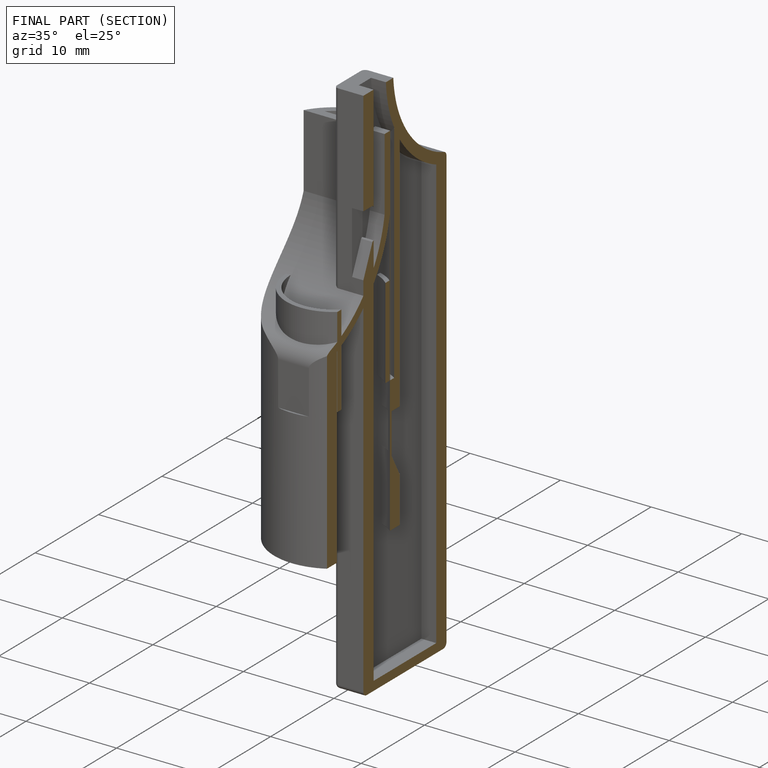
[diagram: finished part — half-section view (interior)]
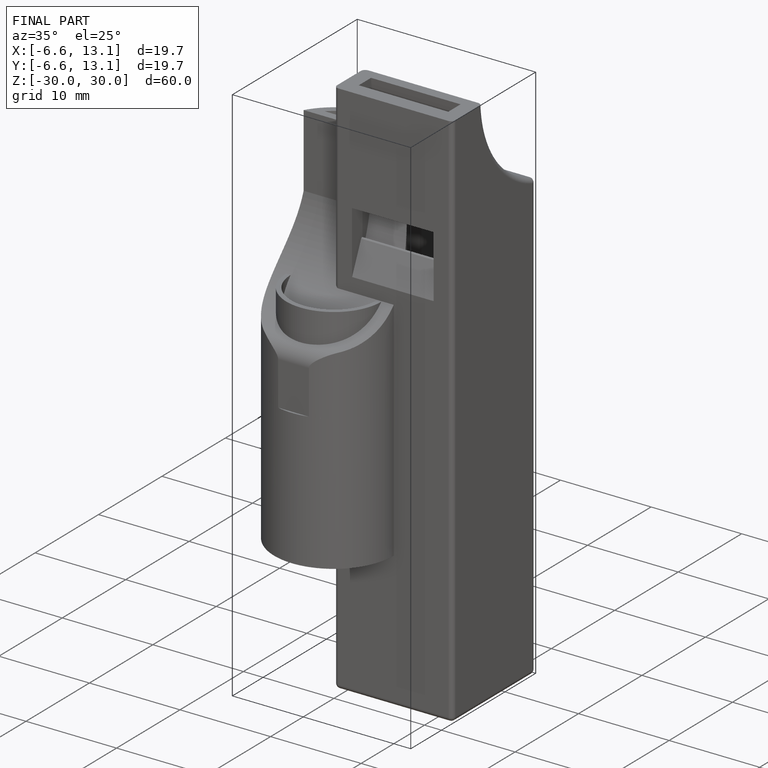
[diagram: finished part — iso view with bounding-box wireframe]
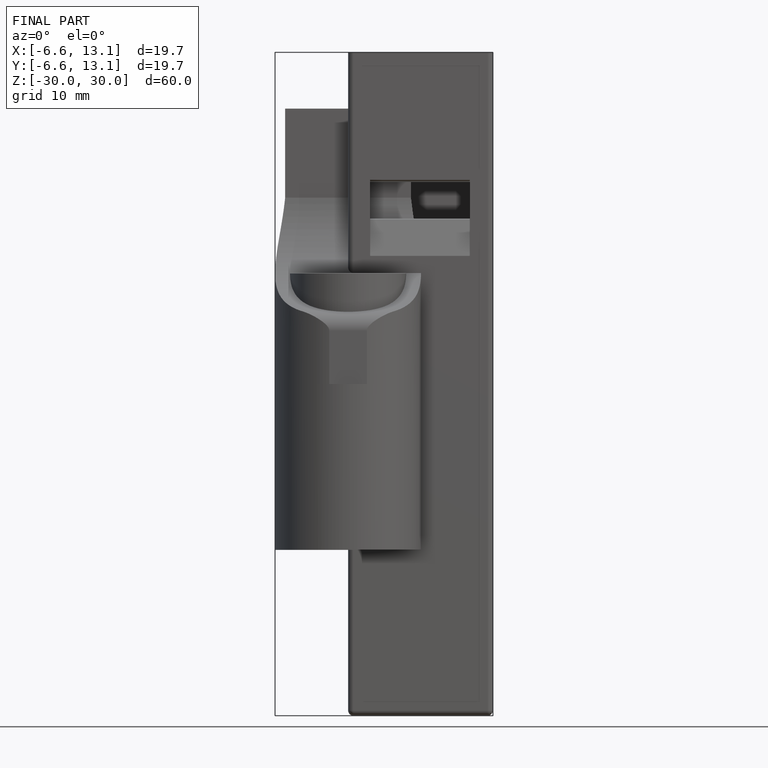
[diagram: finished part — front view with bounding-box wireframe]
